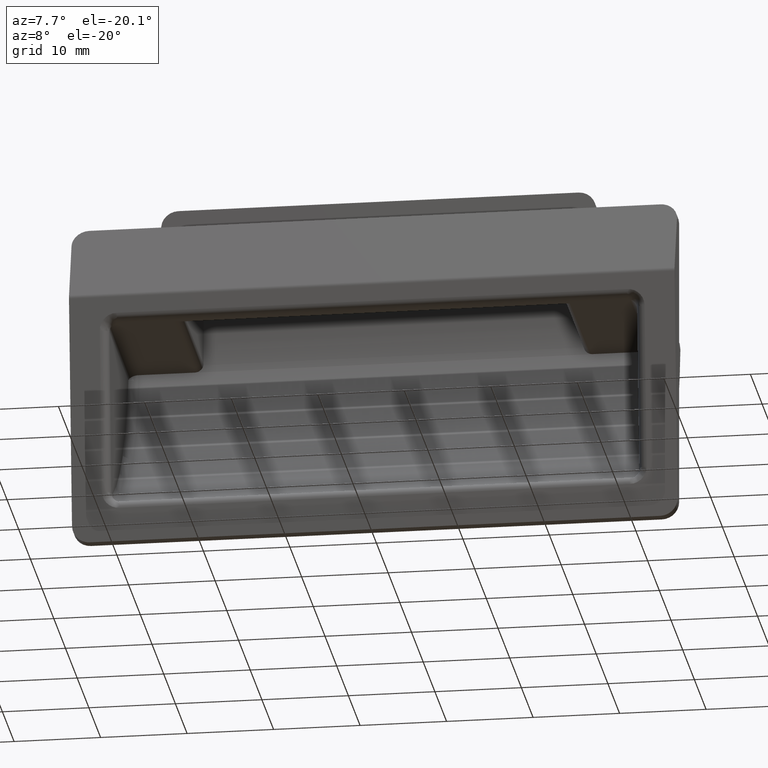
[diagram: clean part render]
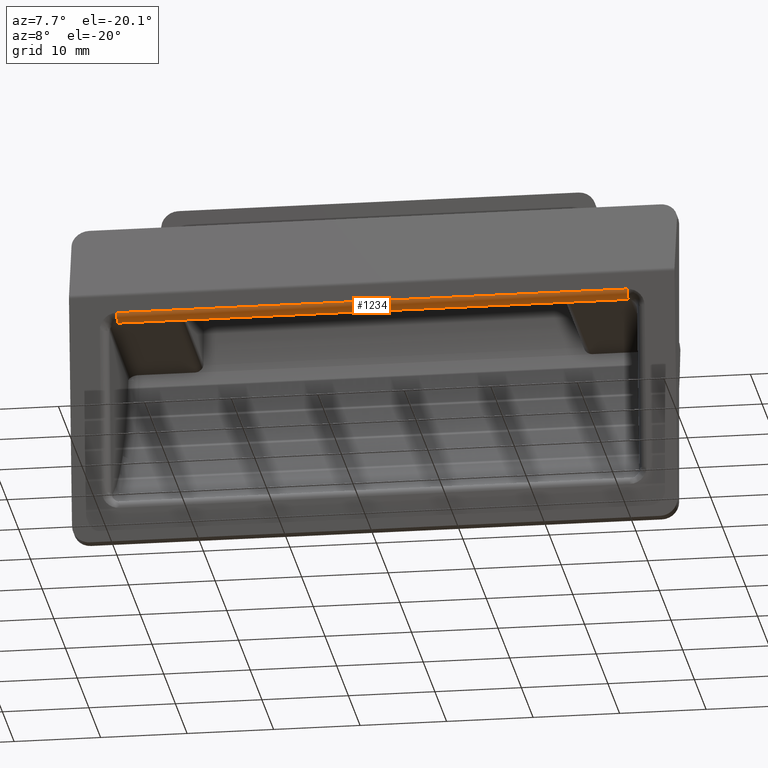
[diagram: same view with one face highlighted and labeled with its STEP entity id]
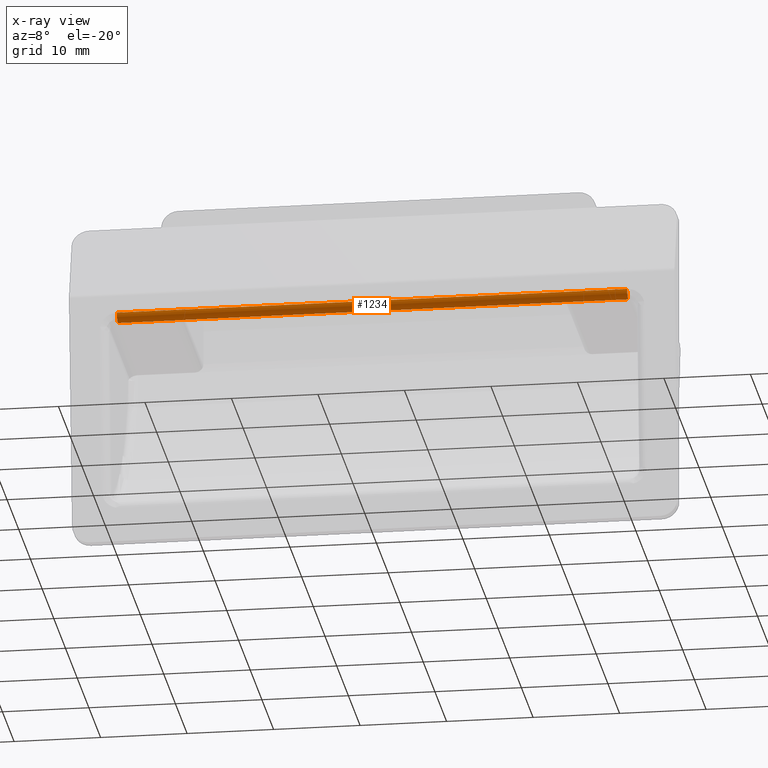
[diagram: x-ray of the same camera — body ghosted, the highlighted face saturated]
A machine part, auxiliary view. The second image highlights one B-rep face of the part: STEP entity #1234.
The next image is the same camera in x-ray: the body ghosted, the highlighted face saturated — about 0% of this face is hidden behind the body in this view.
In plain terms, the highlighted cylindrical surface (edge-blend (fillet) strip) has radius 1 mm, axis along (1, 0, 0).
Its self-contained STEP definition (entity closure, byte-faithful):
#17 = FACE_OUTER_BOUND ( 'NONE', #108, .T. ) ;
#36 = EDGE_CURVE ( 'NONE', #454, #3185, #597, .T. ) ;
#38 = CARTESIAN_POINT ( 'NONE',  ( -29.50000000000000000, -3.812363682148570000, 7.153895192533429500 ) ) ;
#99 = VERTEX_POINT ( 'NONE', #1239 ) ;
#108 = EDGE_LOOP ( 'NONE', ( #2325, #1439, #3100, #215 ) ) ;
#215 = ORIENTED_EDGE ( 'NONE', *, *, #2686, .F. ) ;
#454 = VERTEX_POINT ( 'NONE', #38 ) ;
#491 = VECTOR ( 'NONE', #2795, 1000.000000000000000 ) ;
#597 = LINE ( 'NONE', #1475, #491 ) ;
#613 = DIRECTION ( 'NONE',  ( 0.0000000000000000000, 0.0000000000000000000, -1.000000000000000000 ) ) ;
#870 = DIRECTION ( 'NONE',  ( -1.000000000000000000, -0.0000000000000000000, -0.0000000000000000000 ) ) ;
#1136 = AXIS2_PLACEMENT_3D ( 'NONE', #2710, #870, #613 ) ;
#1183 = CARTESIAN_POINT ( 'NONE',  ( 965.0000000000000000, -2.816992461958929700, 7.250000000000000000 ) ) ;
#1234 = ADVANCED_FACE ( 'NONE', ( #17 ), #1254, .T. ) ;
#1239 = CARTESIAN_POINT ( 'NONE',  ( 29.50000000000000000, -2.816992461958929700, 6.250000000000000000 ) ) ;
#1254 = CYLINDRICAL_SURFACE ( 'NONE', #1724, 1.000000000000000000 ) ;
#1297 = EDGE_CURVE ( 'NONE', #1904, #454, #2060, .T. ) ;
#1408 = DIRECTION ( 'NONE',  ( -1.000000000000000000, -0.0000000000000000000, -0.0000000000000000000 ) ) ;
#1439 = ORIENTED_EDGE ( 'NONE', *, *, #36, .F. ) ;
#1475 = CARTESIAN_POINT ( 'NONE',  ( 965.0000000000000000, -3.812363682148570000, 7.153895192533429500 ) ) ;
#1536 = VECTOR ( 'NONE', #1408, 1000.000000000000000 ) ;
#1624 = EDGE_CURVE ( 'NONE', #99, #3185, #1858, .T. ) ;
#1724 = AXIS2_PLACEMENT_3D ( 'NONE', #1183, #1969, #2067 ) ;
#1858 = CIRCLE ( 'NONE', #1136, 1.000000000000000000 ) ;
#1904 = VERTEX_POINT ( 'NONE', #2943 ) ;
#1969 = DIRECTION ( 'NONE',  ( 1.000000000000000000, 0.0000000000000000000, 0.0000000000000000000 ) ) ;
#2060 = CIRCLE ( 'NONE', #2068, 1.000000000000000000 ) ;
#2067 = DIRECTION ( 'NONE',  ( 0.0000000000000000000, 0.0000000000000000000, -1.000000000000000000 ) ) ;
#2068 = AXIS2_PLACEMENT_3D ( 'NONE', #2974, #3000, #3014 ) ;
#2325 = ORIENTED_EDGE ( 'NONE', *, *, #1624, .T. ) ;
#2468 = CARTESIAN_POINT ( 'NONE',  ( -969.5000000000000000, -2.816992461958929700, 6.250000000000000000 ) ) ;
#2686 = EDGE_CURVE ( 'NONE', #99, #1904, #2945, .T. ) ;
#2710 = CARTESIAN_POINT ( 'NONE',  ( 29.50000000000000000, -2.816992461958929700, 7.250000000000000000 ) ) ;
#2795 = DIRECTION ( 'NONE',  ( 1.000000000000000000, 0.0000000000000000000, 0.0000000000000000000 ) ) ;
#2943 = CARTESIAN_POINT ( 'NONE',  ( -29.50000000000000000, -2.816992461958929700, 6.250000000000000000 ) ) ;
#2945 = LINE ( 'NONE', #2468, #1536 ) ;
#2974 = CARTESIAN_POINT ( 'NONE',  ( -29.50000000000000000, -2.816992461958929700, 7.250000000000000000 ) ) ;
#3000 = DIRECTION ( 'NONE',  ( -1.000000000000000000, 0.0000000000000000000, 0.0000000000000000000 ) ) ;
#3014 = DIRECTION ( 'NONE',  ( 0.0000000000000000000, 0.0000000000000000000, 1.000000000000000000 ) ) ;
#3100 = ORIENTED_EDGE ( 'NONE', *, *, #1297, .F. ) ;
#3185 = VERTEX_POINT ( 'NONE', #3193 ) ;
#3193 = CARTESIAN_POINT ( 'NONE',  ( 29.50000000000000000, -3.812363682148570000, 7.153895192533429500 ) ) ;